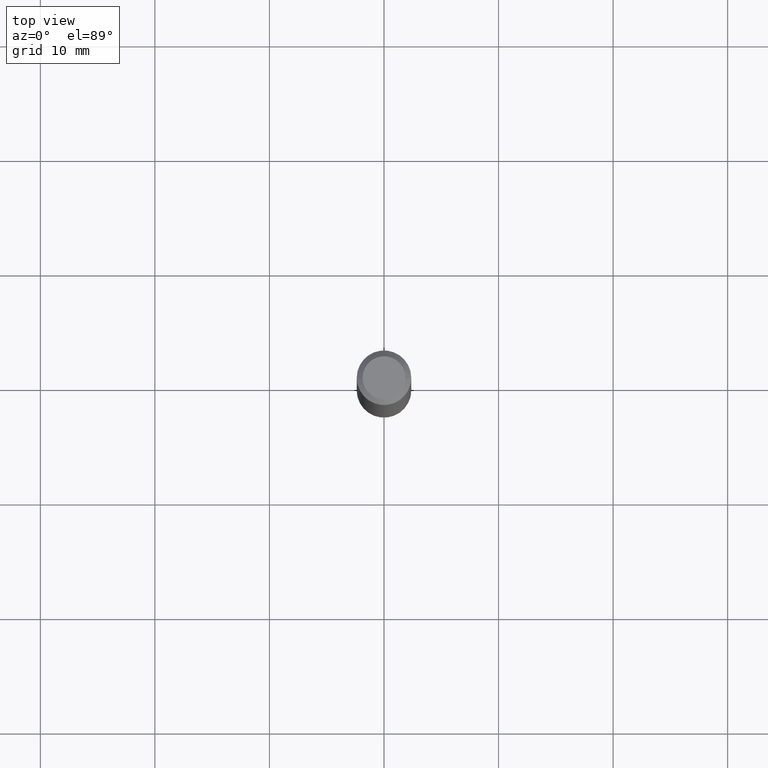
[diagram: clean part render]
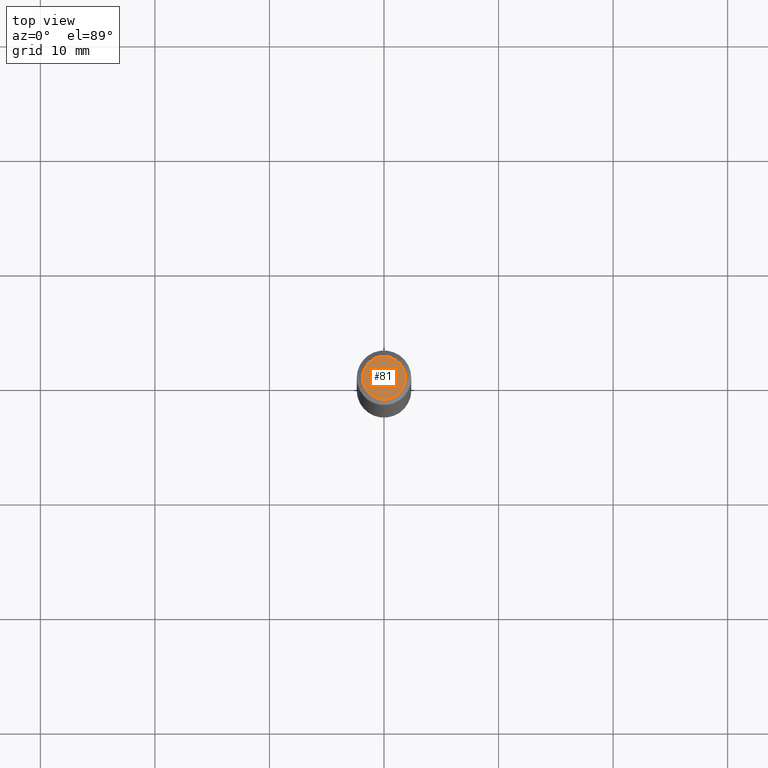
[diagram: same view with one face highlighted and labeled with its STEP entity id]
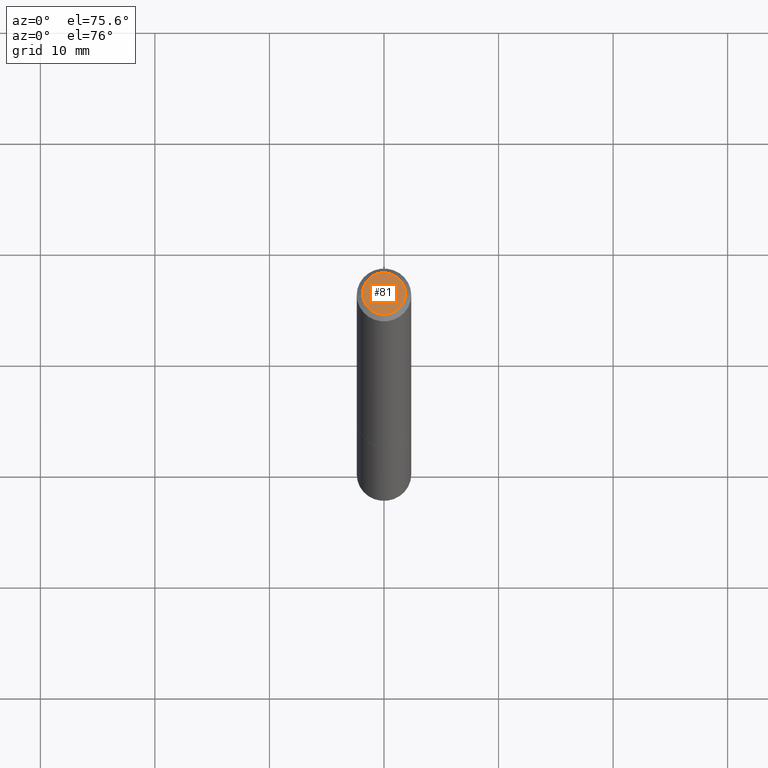
[diagram: same view with one face highlighted and labeled with its STEP entity id]
A machine part, top view. The second image highlights one B-rep face of the part: STEP entity #81.
A second angle (auxiliary view) of the same face is appended — the face is thin or edge-on in the first view.
In plain terms, the highlighted planar face has unit normal (0, -0, -1).
Its self-contained STEP definition (entity closure, byte-faithful):
#8 = DIRECTION ( 'NONE',  ( -2.445468806185136597E-29, 3.491481338843145583E-15, 1.000000000000000000 ) ) ;
#13 = VERTEX_POINT ( 'NONE', #266 ) ;
#15 = EDGE_CURVE ( 'NONE', #211, #13, #53, .T. ) ;
#20 = AXIS2_PLACEMENT_3D ( 'NONE', #285, #379, #254 ) ;
#53 = CIRCLE ( 'NONE', #236, 0.07374999999999981570 ) ;
#81 = ADVANCED_FACE ( 'NONE', ( #305 ), #375, .F. ) ;
#114 = ORIENTED_EDGE ( 'NONE', *, *, #15, .T. ) ;
#126 = DIRECTION ( 'NONE',  ( 1.000000000000000000, -6.982962677686265922E-15, 4.876176775795935793E-29 ) ) ;
#147 = AXIS2_PLACEMENT_3D ( 'NONE', #166, #223, #251 ) ;
#166 = CARTESIAN_POINT ( 'NONE',  ( 5.149934974793608091E-16, 0.07374999999999981570, -2.574967487396813413E-16 ) ) ;
#206 = ORIENTED_EDGE ( 'NONE', *, *, #374, .T. ) ;
#211 = VERTEX_POINT ( 'NONE', #303 ) ;
#223 = DIRECTION ( 'NONE',  ( 2.438088387897960049E-29, -3.491481338843145188E-15, -1.000000000000000000 ) ) ;
#236 = AXIS2_PLACEMENT_3D ( 'NONE', #300, #8, #126 ) ;
#251 = DIRECTION ( 'NONE',  ( -1.000000000000000000, 6.982962677686265922E-15, -4.876176775795935793E-29 ) ) ;
#254 = DIRECTION ( 'NONE',  ( 1.000000000000000000, -6.982962677686265922E-15, 4.876176775795935793E-29 ) ) ;
#266 = CARTESIAN_POINT ( 'NONE',  ( 0.07374999999999981570, -6.094815207017959226E-16, 3.931526600461596647E-30 ) ) ;
#285 = CARTESIAN_POINT ( 'NONE',  ( 0.000000000000000000, 0.000000000000000000, 0.000000000000000000 ) ) ;
#300 = CARTESIAN_POINT ( 'NONE',  ( 0.000000000000000000, 0.000000000000000000, 0.000000000000000000 ) ) ;
#303 = CARTESIAN_POINT ( 'NONE',  ( -0.07374999999999981570, 5.499083108677918666E-16, -3.723527850031184862E-30 ) ) ;
#305 = FACE_OUTER_BOUND ( 'NONE', #346, .T. ) ;
#346 = EDGE_LOOP ( 'NONE', ( #114, #206 ) ) ;
#349 = CIRCLE ( 'NONE', #20, 0.07374999999999981570 ) ;
#374 = EDGE_CURVE ( 'NONE', #13, #211, #349, .T. ) ;
#375 = PLANE ( 'NONE',  #147 ) ;
#379 = DIRECTION ( 'NONE',  ( -2.445468806185136597E-29, 3.491481338843145583E-15, 1.000000000000000000 ) ) ;